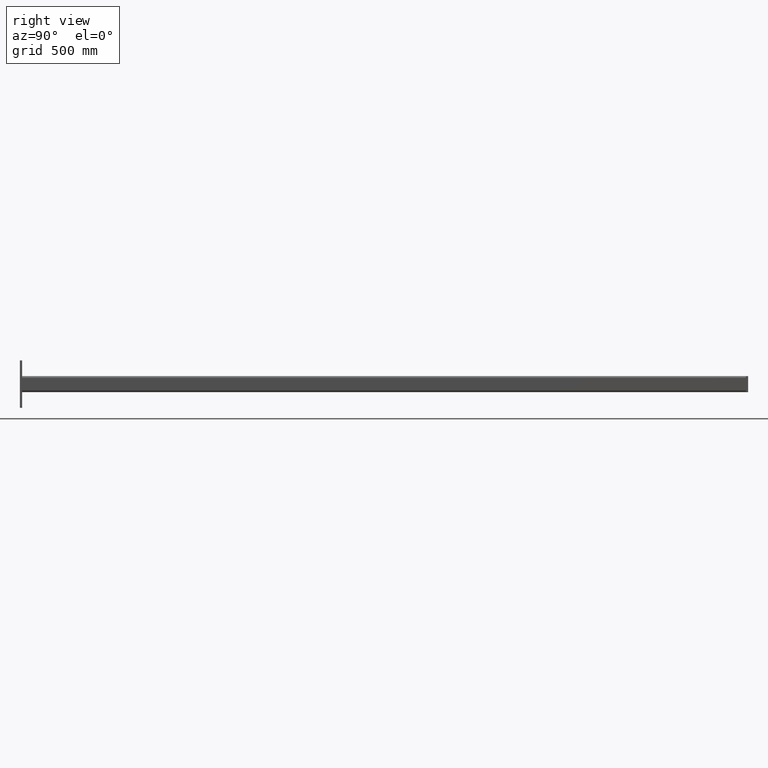
[diagram: clean part render]
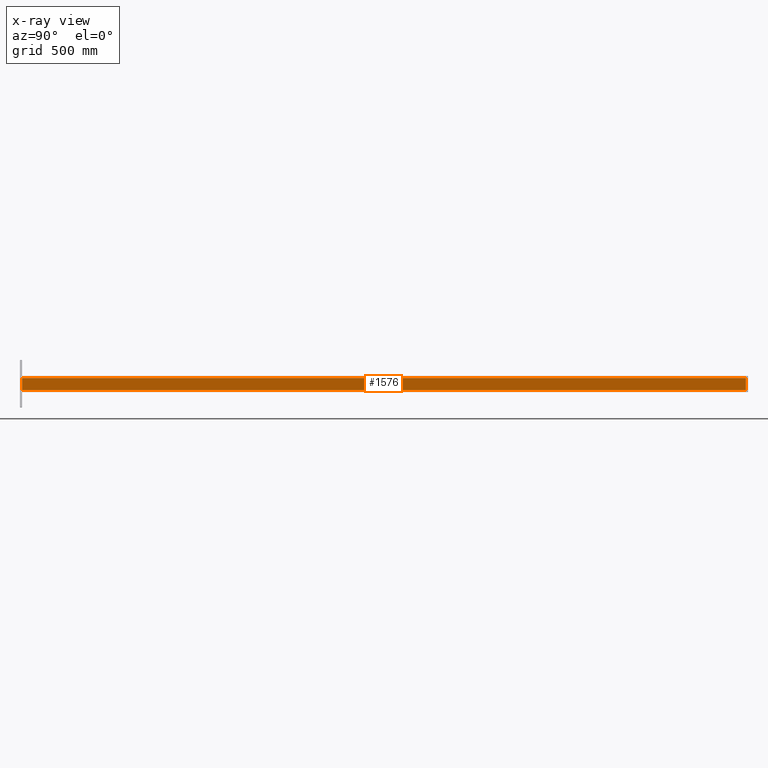
[diagram: x-ray — body ghosted, one internal face saturated and labeled with its STEP entity id]
A machine part, right view, then the same camera in x-ray: the body is ghosted and one INTERNAL B-rep face — a face not visible from any outside direction — is saturated and labeled: STEP entity #1576.
In plain terms, the highlighted planar face has unit normal (-1, 0, 0).
Its self-contained STEP definition (entity closure, byte-faithful):
#90 = CARTESIAN_POINT ( 'NONE',  ( -1680.500000000000000, 33.49999999999961631, -27.50000000000010303 ) ) ;
#109 = CARTESIAN_POINT ( 'NONE',  ( 1680.500000000000000, 33.50000000000063949, -27.50000000000010303 ) ) ;
#231 = CARTESIAN_POINT ( 'NONE',  ( -1680.500000000000000, 33.49999999999961631, -27.50000000000010303 ) ) ;
#263 = CARTESIAN_POINT ( 'NONE',  ( -1680.500000000000000, 33.49999999999961631, 27.49999999999986144 ) ) ;
#324 = VERTEX_POINT ( 'NONE', #1338 ) ;
#464 = VERTEX_POINT ( 'NONE', #109 ) ;
#472 = CARTESIAN_POINT ( 'NONE',  ( -1680.500000000000000, 33.49999999999961631, -27.50000000000010303 ) ) ;
#505 = DIRECTION ( 'NONE',  ( -0.000000000000000000, -0.000000000000000000, -1.000000000000000000 ) ) ;
#509 = EDGE_CURVE ( 'NONE', #324, #464, #1585, .T. ) ;
#540 = VERTEX_POINT ( 'NONE', #1336 ) ;
#572 = DIRECTION ( 'NONE',  ( 1.000000000000000000, 3.061616997868382648E-16, -0.000000000000000000 ) ) ;
#633 = DIRECTION ( 'NONE',  ( -0.000000000000000000, -0.000000000000000000, -1.000000000000000000 ) ) ;
#661 = EDGE_CURVE ( 'NONE', #540, #1364, #1158, .T. ) ;
#743 = VECTOR ( 'NONE', #505, 1000.000000000000000 ) ;
#766 = ORIENTED_EDGE ( 'NONE', *, *, #509, .F. ) ;
#798 = FACE_OUTER_BOUND ( 'NONE', #1193, .T. ) ;
#967 = DIRECTION ( 'NONE',  ( 3.061616997868382648E-16, -1.000000000000000000, 0.000000000000000000 ) ) ;
#1158 = LINE ( 'NONE', #472, #2011 ) ;
#1159 = LINE ( 'NONE', #263, #2362 ) ;
#1193 = EDGE_LOOP ( 'NONE', ( #766, #2088, #2294, #1428 ) ) ;
#1206 = VECTOR ( 'NONE', #572, 1000.000000000000000 ) ;
#1336 = CARTESIAN_POINT ( 'NONE',  ( -1680.500000000000000, 33.49999999999961631, 27.49999999999986144 ) ) ;
#1338 = CARTESIAN_POINT ( 'NONE',  ( 1680.500000000000000, 33.50000000000063949, 27.49999999999986144 ) ) ;
#1364 = VERTEX_POINT ( 'NONE', #2025 ) ;
#1374 = DIRECTION ( 'NONE',  ( 1.000000000000000000, 3.061616997868382648E-16, 0.000000000000000000 ) ) ;
#1383 = EDGE_CURVE ( 'NONE', #1364, #464, #2034, .T. ) ;
#1428 = ORIENTED_EDGE ( 'NONE', *, *, #1383, .T. ) ;
#1576 = ADVANCED_FACE ( 'NONE', ( #798 ), #1724, .T. ) ;
#1585 = LINE ( 'NONE', #2142, #743 ) ;
#1611 = DIRECTION ( 'NONE',  ( 1.000000000000000000, 3.061616997868382648E-16, -0.000000000000000000 ) ) ;
#1724 = PLANE ( 'NONE',  #1776 ) ;
#1776 = AXIS2_PLACEMENT_3D ( 'NONE', #90, #967, #1374 ) ;
#1935 = EDGE_CURVE ( 'NONE', #540, #324, #1159, .T. ) ;
#2011 = VECTOR ( 'NONE', #633, 1000.000000000000000 ) ;
#2025 = CARTESIAN_POINT ( 'NONE',  ( -1680.500000000000000, 33.49999999999961631, -27.50000000000010303 ) ) ;
#2034 = LINE ( 'NONE', #231, #1206 ) ;
#2088 = ORIENTED_EDGE ( 'NONE', *, *, #1935, .F. ) ;
#2142 = CARTESIAN_POINT ( 'NONE',  ( 1680.500000000000000, 33.50000000000063949, -27.50000000000010303 ) ) ;
#2294 = ORIENTED_EDGE ( 'NONE', *, *, #661, .T. ) ;
#2362 = VECTOR ( 'NONE', #1611, 1000.000000000000000 ) ;